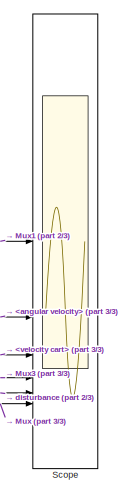
[diagram: root canvas - part 1/3, right side, full height]
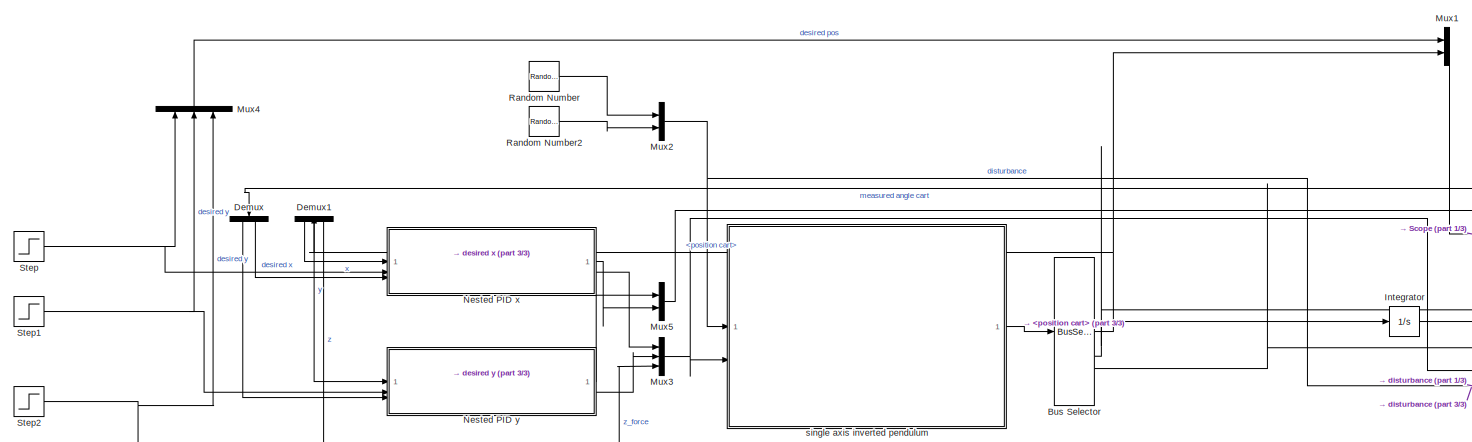
[diagram: root canvas - part 2/3, most of the canvas]
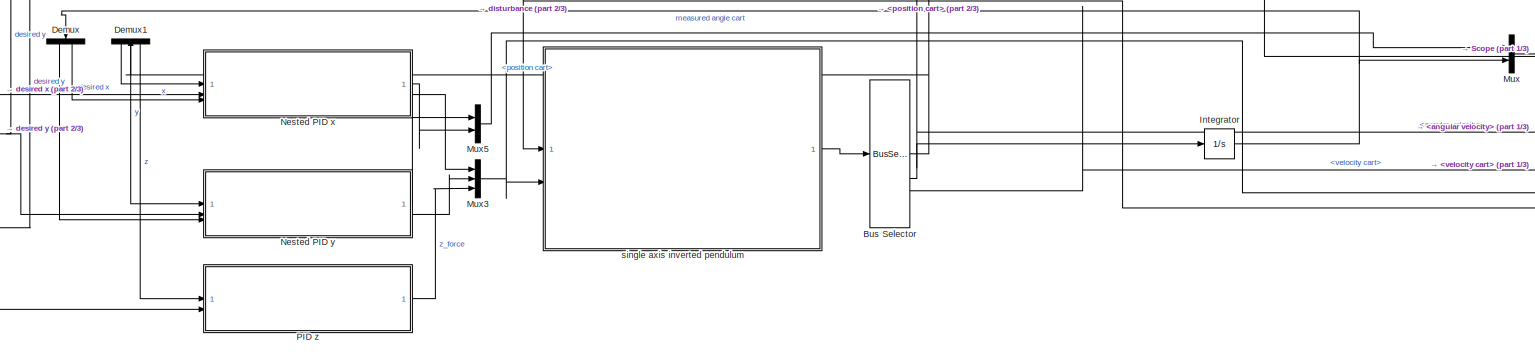
[diagram: root canvas - part 3/3, full width, bottom band]
MODEL slx_c5a502c4947e
KIND model
CONFIG AbsTol = auto
CONFIG EnableMultiTasking = off
CONFIG FixedStep = auto
CONFIG MaxStep = 0.2
CONFIG MinStep = 0.002
CONFIG RelTol = 1e-3
CONFIG SampleTimeConstraint = Unconstrained
CONFIG SolverName = VariableStepAuto
CONFIG StartTime = 0.0
CONFIG StopTime = 20
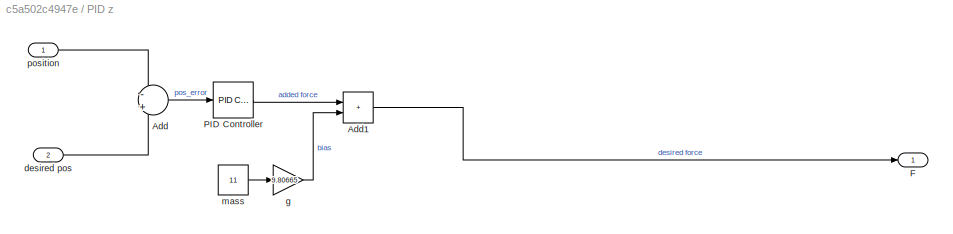
BLOCK [SubSystem]  PID z
BLOCK [Sum]  PID z/Add
  Inputs = -+
BLOCK [Sum]  PID z/Add1
  IconShape = rectangular
BLOCK [Outport]  PID z/F
BLOCK [Reference]  PID z/PID Controller  REF=slpidlib/PID Controller
  LibrarySourceBlock = simulink/Continuous/PID Controller
  SourceBlock = slpidlib/PID Controller
  SourceType = PID 1dof
BLOCK [Inport]  PID z/desired pos
  NameLocation = top
  Port = 2
BLOCK [Gain]  PID z/g
  Gain = 9.80665
BLOCK [Constant]  PID z/mass
  Value = 11
BLOCK [Inport]  PID z/position
  NameLocation = top
BLOCK [BusSelector] Bus Selector
  OutputSignals = position cart,angular velocity,velocity cart
BLOCK [Demux] Demux
  NameLocation = left
  Outputs = 2
BLOCK [Demux] Demux1
  NameLocation = left
  Outputs = 3
BLOCK [Integrator] Integrator
BLOCK [Mux] Mux
  DisplayOption = bar
  Inputs = 2
BLOCK [Mux] Mux1
  DisplayOption = bar
  Inputs = 2
BLOCK [Mux] Mux2
  DisplayOption = bar
  Inputs = 2
BLOCK [Mux] Mux3
  DisplayOption = bar
  Inputs = 3
BLOCK [Mux] Mux4
  DisplayOption = bar
  Inputs = 3
  NameLocation = right
BLOCK [Mux] Mux5
  DisplayOption = bar
  Inputs = 2
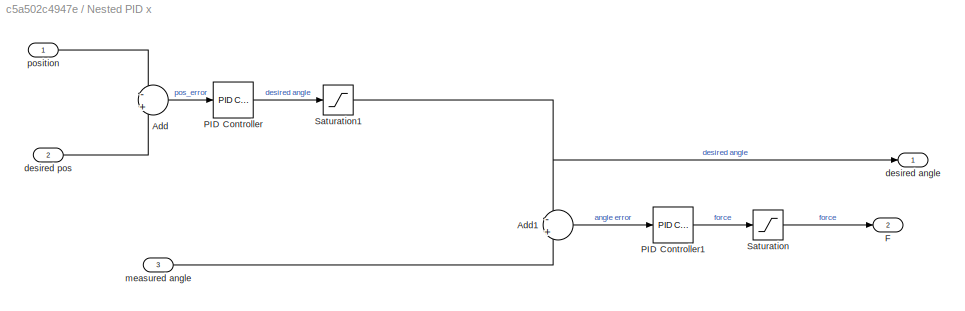
BLOCK [SubSystem] Nested PID x
BLOCK [Sum] Nested PID x/Add
  Inputs = -+
BLOCK [Sum] Nested PID x/Add1
  Inputs = -+
BLOCK [Outport] Nested PID x/F
  Port = 2
BLOCK [Reference] Nested PID x/PID Controller  REF=slpidlib/PID Controller
  LibrarySourceBlock = simulink/Continuous/PID Controller
  SourceBlock = slpidlib/PID Controller
  SourceType = PID 1dof
BLOCK [Reference] Nested PID x/PID Controller1  REF=slpidlib/PID Controller
  LibrarySourceBlock = simulink/Continuous/PID Controller
  SourceBlock = slpidlib/PID Controller
  SourceType = PID 1dof
BLOCK [Saturate] Nested PID x/Saturation
  LowerLimit = -100
  UpperLimit = 100
BLOCK [Saturate] Nested PID x/Saturation1
  LowerLimit = deg2rad(-10)
  UpperLimit = deg2rad(10)
BLOCK [Outport] Nested PID x/desired angle
BLOCK [Inport] Nested PID x/desired pos
  NameLocation = top
  Port = 2
BLOCK [Inport] Nested PID x/measured angle
  Port = 3
BLOCK [Inport] Nested PID x/position
  NameLocation = top
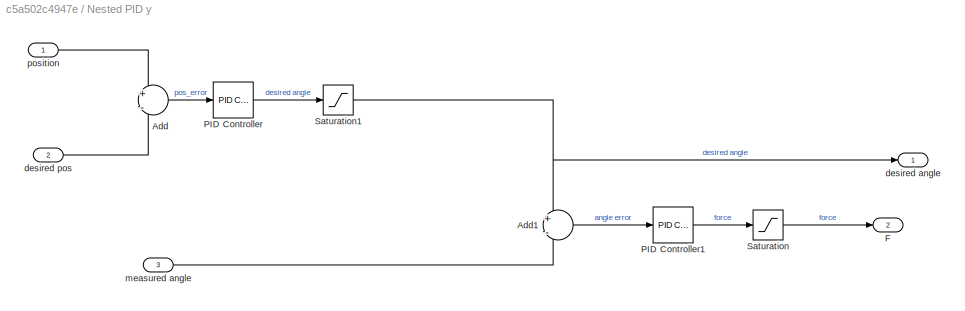
BLOCK [SubSystem] Nested PID y
BLOCK [Sum] Nested PID y/Add
  Inputs = +-
BLOCK [Sum] Nested PID y/Add1
  Inputs = +-
BLOCK [Outport] Nested PID y/F
  Port = 2
BLOCK [Reference] Nested PID y/PID Controller  REF=slpidlib/PID Controller
  LibrarySourceBlock = simulink/Continuous/PID Controller
  SourceBlock = slpidlib/PID Controller
  SourceType = PID 1dof
BLOCK [Reference] Nested PID y/PID Controller1  REF=slpidlib/PID Controller
  LibrarySourceBlock = simulink/Continuous/PID Controller
  SourceBlock = slpidlib/PID Controller
  SourceType = PID 1dof
BLOCK [Saturate] Nested PID y/Saturation
  LowerLimit = -100
  UpperLimit = 100
BLOCK [Saturate] Nested PID y/Saturation1
  LowerLimit = deg2rad(-10)
  UpperLimit = deg2rad(10)
BLOCK [Outport] Nested PID y/desired angle
BLOCK [Inport] Nested PID y/desired pos
  NameLocation = top
  Port = 2
BLOCK [Inport] Nested PID y/measured angle
  Port = 3
BLOCK [Inport] Nested PID y/position
  NameLocation = top
BLOCK [RandomNumber] Random Number
  SampleTime = 1
  Seed = 2
  Variance = 12
BLOCK [RandomNumber] Random Number2
  SampleTime = 2
  Seed = 12
  Variance = 20
BLOCK [Scope] Scope
  Floating = off
  NumInputPorts = 6
  ScopeSpecificationString = Simulink.scopes.TimeScopeBlockCfg('CurrentConfiguration', extmgr.ConfigurationSet(extmgr.Configuration('Core','General UI',true,'FigureColor',[1 1 1]),extmgr.Configuration('Core','Source UI',true),extmgr.Configuration('Sources','WiredSimulink',true),extmgr.Configuration('Visuals','Time Domain',true,'SerializedDisplays',{struct('MinYLimReal','-8.11528','MaxYLimReal','11.91593','YLabelReal','x','Min...<+6552ch>
BLOCK [Step] Step
  After = -5
  SampleTime = 0
  Time = 0
BLOCK [Step] Step1
  After = -5
  SampleTime = 0
  Time = 5
BLOCK [Step] Step2
  After = 6
  SampleTime = 0
  Time = 5
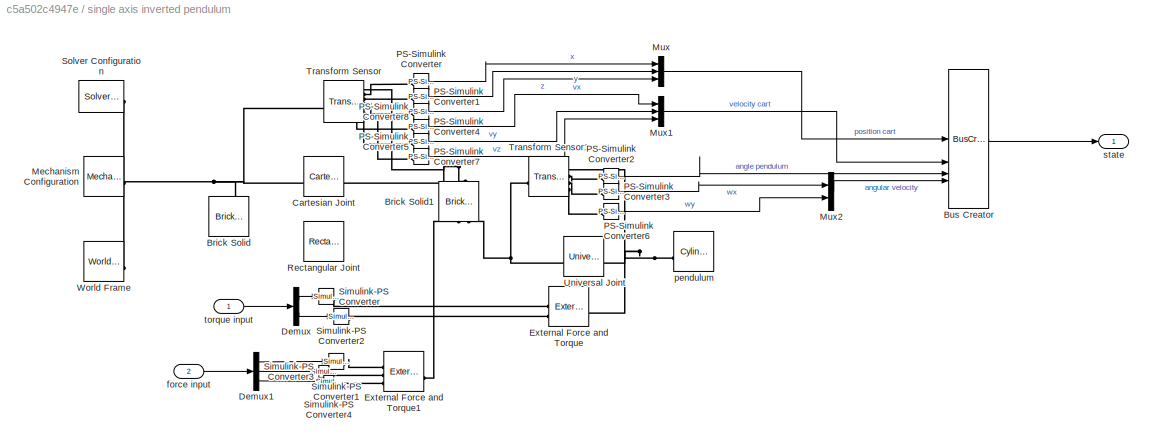
BLOCK [SubSystem] single axis inverted pendulum
BLOCK [Reference] single axis inverted pendulum/Brick Solid  REF=sm_lib/Body Elements/Brick Solid
  NameLocation = left
  SourceBlock = sm_lib/Body Elements/Brick Solid
  SourceType = Brick Solid
BLOCK [Reference] single axis inverted pendulum/Brick Solid1  REF=sm_lib/Body Elements/Brick Solid
  NameLocation = right
  SourceBlock = sm_lib/Body Elements/Brick Solid
  SourceType = Brick Solid
BLOCK [BusCreator] single axis inverted pendulum/Bus Creator
  DisplayOption = bar
  InheritFromInputs = on
  Inputs = 4
BLOCK [Reference] single axis inverted pendulum/Cartesian Joint  REF=sm_lib/Joints/Cartesian
Joint
  SourceBlock = sm_lib/Joints/Cartesian\nJoint
  SourceType = Cartesian\nJoint
BLOCK [Demux] single axis inverted pendulum/Demux
  Outputs = 2
BLOCK [Demux] single axis inverted pendulum/Demux1
  Outputs = 3
BLOCK [Reference] single axis inverted pendulum/External Force and Torque  REF=sm_lib/Forces and
Torques/External Force
and Torque
  SourceBlock = sm_lib/Forces and\nTorques/External Force\nand Torque
  SourceType = External Force\nand Torque
BLOCK [Reference] single axis inverted pendulum/External Force and Torque1  REF=sm_lib/Forces and
Torques/External Force
and Torque
  SourceBlock = sm_lib/Forces and\nTorques/External Force\nand Torque
  SourceType = External Force\nand Torque
BLOCK [Reference] single axis inverted pendulum/Mechanism Configuration  REF=sm_lib/Utilities/Mechanism
Configuration
  SourceBlock = sm_lib/Utilities/Mechanism\nConfiguration
  SourceType = Mechanism\nConfiguration
BLOCK [Mux] single axis inverted pendulum/Mux
  DisplayOption = bar
  Inputs = 3
BLOCK [Mux] single axis inverted pendulum/Mux1
  DisplayOption = bar
  Inputs = 3
BLOCK [Mux] single axis inverted pendulum/Mux2
  DisplayOption = bar
  Inputs = 2
BLOCK [Reference] single axis inverted pendulum/PS-Simulink Converter  REF=nesl_utility/PS-Simulink
Converter
  SourceBlock = nesl_utility/PS-Simulink\nConverter
  SourceType = PS-Simulink\nConverter
BLOCK [Reference] single axis inverted pendulum/PS-Simulink Converter1  REF=nesl_utility/PS-Simulink
Converter
  SourceBlock = nesl_utility/PS-Simulink\nConverter
  SourceType = PS-Simulink\nConverter
BLOCK [Reference] single axis inverted pendulum/PS-Simulink Converter2  REF=nesl_utility/PS-Simulink
Converter
  SourceBlock = nesl_utility/PS-Simulink\nConverter
  SourceType = PS-Simulink\nConverter
BLOCK [Reference] single axis inverted pendulum/PS-Simulink Converter3  REF=nesl_utility/PS-Simulink
Converter
  SourceBlock = nesl_utility/PS-Simulink\nConverter
  SourceType = PS-Simulink\nConverter
BLOCK [Reference] single axis inverted pendulum/PS-Simulink Converter4  REF=nesl_utility/PS-Simulink
Converter
  SourceBlock = nesl_utility/PS-Simulink\nConverter
  SourceType = PS-Simulink\nConverter
BLOCK [Reference] single axis inverted pendulum/PS-Simulink Converter5  REF=nesl_utility/PS-Simulink
Converter
  SourceBlock = nesl_utility/PS-Simulink\nConverter
  SourceType = PS-Simulink\nConverter
BLOCK [Reference] single axis inverted pendulum/PS-Simulink Converter6  REF=nesl_utility/PS-Simulink
Converter
  SourceBlock = nesl_utility/PS-Simulink\nConverter
  SourceType = PS-Simulink\nConverter
BLOCK [Reference] single axis inverted pendulum/PS-Simulink Converter7  REF=nesl_utility/PS-Simulink
Converter
  SourceBlock = nesl_utility/PS-Simulink\nConverter
  SourceType = PS-Simulink\nConverter
BLOCK [Reference] single axis inverted pendulum/PS-Simulink Converter8  REF=nesl_utility/PS-Simulink
Converter
  SourceBlock = nesl_utility/PS-Simulink\nConverter
  SourceType = PS-Simulink\nConverter
BLOCK [Reference] single axis inverted pendulum/Rectangular Joint  REF=sm_lib/Joints/Rectangular
Joint
  SourceBlock = sm_lib/Joints/Rectangular\nJoint
  SourceType = Rectangular\nJoint
BLOCK [Reference] single axis inverted pendulum/Simulink-PS Converter  REF=nesl_utility/Simulink-PS
Converter
  SourceBlock = nesl_utility/Simulink-PS\nConverter
  SourceType = Simulink-PS\nConverter
BLOCK [Reference] single axis inverted pendulum/Simulink-PS Converter1  REF=nesl_utility/Simulink-PS
Converter
  SourceBlock = nesl_utility/Simulink-PS\nConverter
  SourceType = Simulink-PS\nConverter
BLOCK [Reference] single axis inverted pendulum/Simulink-PS Converter2  REF=nesl_utility/Simulink-PS
Converter
  SourceBlock = nesl_utility/Simulink-PS\nConverter
  SourceType = Simulink-PS\nConverter
BLOCK [Reference] single axis inverted pendulum/Simulink-PS Converter3  REF=nesl_utility/Simulink-PS
Converter
  SourceBlock = nesl_utility/Simulink-PS\nConverter
  SourceType = Simulink-PS\nConverter
BLOCK [Reference] single axis inverted pendulum/Simulink-PS Converter4  REF=nesl_utility/Simulink-PS
Converter
  SourceBlock = nesl_utility/Simulink-PS\nConverter
  SourceType = Simulink-PS\nConverter
BLOCK [Reference] single axis inverted pendulum/Solver Configuration  REF=nesl_utility/Solver
Configuration
  SourceBlock = nesl_utility/Solver\nConfiguration
  SourceType = Solver\nConfiguration
BLOCK [Reference] single axis inverted pendulum/Transform Sensor  REF=sm_lib/Frames and
Transforms/Transform
Sensor
  SourceBlock = sm_lib/Frames and\nTransforms/Transform\nSensor
  SourceType = Transform\nSensor
BLOCK [Reference] single axis inverted pendulum/Transform Sensor1  REF=sm_lib/Frames and
Transforms/Transform
Sensor
  SourceBlock = sm_lib/Frames and\nTransforms/Transform\nSensor
  SourceType = Transform\nSensor
BLOCK [Reference] single axis inverted pendulum/Universal Joint  REF=sm_lib/Joints/Universal
Joint
  SourceBlock = sm_lib/Joints/Universal\nJoint
  SourceType = Universal\nJoint
BLOCK [Reference] single axis inverted pendulum/World Frame  REF=sm_lib/Frames and
Transforms/World Frame
  SourceBlock = sm_lib/Frames and\nTransforms/World Frame
  SourceType = World Frame
BLOCK [Inport] single axis inverted pendulum/force input
  Port = 2
BLOCK [Reference] single axis inverted pendulum/pendulum  REF=sm_lib/Body Elements/Cylindrical Solid
  SourceBlock = sm_lib/Body Elements/Cylindrical Solid
  SourceType = Cylindrical Solid
BLOCK [Outport] single axis inverted pendulum/state
BLOCK [Inport] single axis inverted pendulum/torque input
LINE  PID z/Add1:1 ->  PID z/F:1
LINE  PID z/Add:1 ->  PID z/PID Controller:1
LINE  PID z/PID Controller:1 ->  PID z/Add1:1
LINE  PID z/desired pos:1 ->  PID z/Add:2
LINE  PID z/g:1 ->  PID z/Add1:2
LINE  PID z/mass:1 ->  PID z/g:1
LINE  PID z/position:1 ->  PID z/Add:1
LINE  PID z:1 -> Mux3:3
NET Bus Selector:1 -> Demux1:1, Mux1:2
NET Bus Selector:2 -> Integrator:1, Scope:2
LINE Bus Selector:3 -> Scope:3
LINE Demux1:1 -> Nested PID x:1
LINE Demux1:2 -> Nested PID y:1
LINE Demux1:3 ->  PID z:1
LINE Demux:1 -> Nested PID y:3
LINE Demux:2 -> Nested PID x:3
NET Integrator:1 -> Demux:1, Mux:2
LINE Mux1:1 -> Scope:1
NET Mux2:1 -> Scope:5, single axis inverted pendulum:1
NET Mux3:1 -> Scope:4, single axis inverted pendulum:2
LINE Mux4:1 -> Mux1:1
LINE Mux5:1 -> Mux:1
LINE Mux:1 -> Scope:6
LINE Nested PID x/Add1:1 -> Nested PID x/PID Controller1:1
LINE Nested PID x/Add:1 -> Nested PID x/PID Controller:1
LINE Nested PID x/PID Controller1:1 -> Nested PID x/Saturation:1
LINE Nested PID x/PID Controller:1 -> Nested PID x/Saturation1:1
NET Nested PID x/Saturation1:1 -> Nested PID x/Add1:1, Nested PID x/desired angle:1
LINE Nested PID x/Saturation:1 -> Nested PID x/F:1
LINE Nested PID x/desired pos:1 -> Nested PID x/Add:2
LINE Nested PID x/measured angle:1 -> Nested PID x/Add1:2
LINE Nested PID x/position:1 -> Nested PID x/Add:1
LINE Nested PID x:1 -> Mux5:2
LINE Nested PID x:2 -> Mux3:1
LINE Nested PID y/Add1:1 -> Nested PID y/PID Controller1:1
LINE Nested PID y/Add:1 -> Nested PID y/PID Controller:1
LINE Nested PID y/PID Controller1:1 -> Nested PID y/Saturation:1
LINE Nested PID y/PID Controller:1 -> Nested PID y/Saturation1:1
NET Nested PID y/Saturation1:1 -> Nested PID y/Add1:1, Nested PID y/desired angle:1
LINE Nested PID y/Saturation:1 -> Nested PID y/F:1
LINE Nested PID y/desired pos:1 -> Nested PID y/Add:2
LINE Nested PID y/measured angle:1 -> Nested PID y/Add1:2
LINE Nested PID y/position:1 -> Nested PID y/Add:1
LINE Nested PID y:1 -> Mux5:1
LINE Nested PID y:2 -> Mux3:2
LINE Random Number2:1 -> Mux2:2
LINE Random Number:1 -> Mux2:1
NET Step1:1 -> Mux4:2, Nested PID y:2
NET Step2:1 ->  PID z:2, Mux4:3
NET Step:1 -> Mux4:1, Nested PID x:2
LINE single axis inverted pendulum/Bus Creator:1 -> single axis inverted pendulum/state:1
LINE single axis inverted pendulum/Demux1:1 -> single axis inverted pendulum/Simulink-PS Converter1:1
LINE single axis inverted pendulum/Demux1:2 -> single axis inverted pendulum/Simulink-PS Converter3:1
LINE single axis inverted pendulum/Demux1:3 -> single axis inverted pendulum/Simulink-PS Converter4:1
LINE single axis inverted pendulum/Demux:1 -> single axis inverted pendulum/Simulink-PS Converter:1
LINE single axis inverted pendulum/Demux:2 -> single axis inverted pendulum/Simulink-PS Converter2:1
LINE single axis inverted pendulum/Mux1:1 -> single axis inverted pendulum/Bus Creator:2
LINE single axis inverted pendulum/Mux2:1 -> single axis inverted pendulum/Bus Creator:4
LINE single axis inverted pendulum/Mux:1 -> single axis inverted pendulum/Bus Creator:1
LINE single axis inverted pendulum/PS-Simulink Converter1:1 -> single axis inverted pendulum/Mux:2
LINE single axis inverted pendulum/PS-Simulink Converter2:1 -> single axis inverted pendulum/Bus Creator:3
LINE single axis inverted pendulum/PS-Simulink Converter3:1 -> single axis inverted pendulum/Mux2:1
LINE single axis inverted pendulum/PS-Simulink Converter4:1 -> single axis inverted pendulum/Mux1:1
LINE single axis inverted pendulum/PS-Simulink Converter5:1 -> single axis inverted pendulum/Mux1:2
LINE single axis inverted pendulum/PS-Simulink Converter6:1 -> single axis inverted pendulum/Mux2:2
LINE single axis inverted pendulum/PS-Simulink Converter7:1 -> single axis inverted pendulum/Mux1:3
LINE single axis inverted pendulum/PS-Simulink Converter8:1 -> single axis inverted pendulum/Mux:3
LINE single axis inverted pendulum/PS-Simulink Converter:1 -> single axis inverted pendulum/Mux:1
LINE single axis inverted pendulum/force input:1 -> single axis inverted pendulum/Demux1:1
LINE single axis inverted pendulum/torque input:1 -> single axis inverted pendulum/Demux:1
LINE single axis inverted pendulum:1 -> Bus Selector:1
PLINE single axis inverted pendulum/Brick Solid1:LConn1 -- single axis inverted pendulum/External Force and Torque1:RConn1
PNET net1: single axis inverted pendulum/Brick Solid1:LConn2 -- single axis inverted pendulum/Transform Sensor1:LConn1 -- single axis inverted pendulum/Universal Joint:LConn1
PNET net2: single axis inverted pendulum/Brick Solid1:RConn1 -- single axis inverted pendulum/Cartesian Joint:RConn1 -- single axis inverted pendulum/Transform Sensor:RConn1
PNET net3: single axis inverted pendulum/Brick Solid:LConn1 -- single axis inverted pendulum/Cartesian Joint:LConn1 -- single axis inverted pendulum/Mechanism Configuration:RConn1 -- single axis inverted pendulum/Solver Configuration:RConn1 -- single axis inverted pendulum/Transform Sensor:LConn1 -- single axis inverted pendulum/World Frame:RConn1
PLINE single axis inverted pendulum/External Force and Torque1:LConn1 -- single axis inverted pendulum/Simulink-PS Converter1:RConn1
PLINE single axis inverted pendulum/External Force and Torque1:LConn2 -- single axis inverted pendulum/Simulink-PS Converter3:RConn1
PLINE single axis inverted pendulum/External Force and Torque1:LConn3 -- single axis inverted pendulum/Simulink-PS Converter4:RConn1
PLINE single axis inverted pendulum/External Force and Torque:LConn1 -- single axis inverted pendulum/Simulink-PS Converter:RConn1
PLINE single axis inverted pendulum/External Force and Torque:LConn2 -- single axis inverted pendulum/Simulink-PS Converter2:RConn1
PNET net4: single axis inverted pendulum/External Force and Torque:RConn1 -- single axis inverted pendulum/Transform Sensor1:RConn1 -- single axis inverted pendulum/Universal Joint:RConn1 -- single axis inverted pendulum/pendulum:LConn1
PLINE single axis inverted pendulum/PS-Simulink Converter1:LConn1 -- single axis inverted pendulum/Transform Sensor:RConn3
PLINE single axis inverted pendulum/PS-Simulink Converter2:LConn1 -- single axis inverted pendulum/Transform Sensor1:RConn2
PLINE single axis inverted pendulum/PS-Simulink Converter3:LConn1 -- single axis inverted pendulum/Transform Sensor1:RConn3
PLINE single axis inverted pendulum/PS-Simulink Converter4:LConn1 -- single axis inverted pendulum/Transform Sensor:RConn5
PLINE single axis inverted pendulum/PS-Simulink Converter5:LConn1 -- single axis inverted pendulum/Transform Sensor:RConn6
PLINE single axis inverted pendulum/PS-Simulink Converter6:LConn1 -- single axis inverted pendulum/Transform Sensor1:RConn4
PLINE single axis inverted pendulum/PS-Simulink Converter7:LConn1 -- single axis inverted pendulum/Transform Sensor:RConn7
PLINE single axis inverted pendulum/PS-Simulink Converter8:LConn1 -- single axis inverted pendulum/Transform Sensor:RConn4
PLINE single axis inverted pendulum/PS-Simulink Converter:LConn1 -- single axis inverted pendulum/Transform Sensor:RConn2
note: NET lines group one-source signal fan-out (src -> all destinations, sorted); 1:1 wires keep LINE; PNET lines group multi-terminal physical nets as a canonical sorted terminal list (undirected conserving connections); 2-terminal nets keep the pairwise PLINE form
